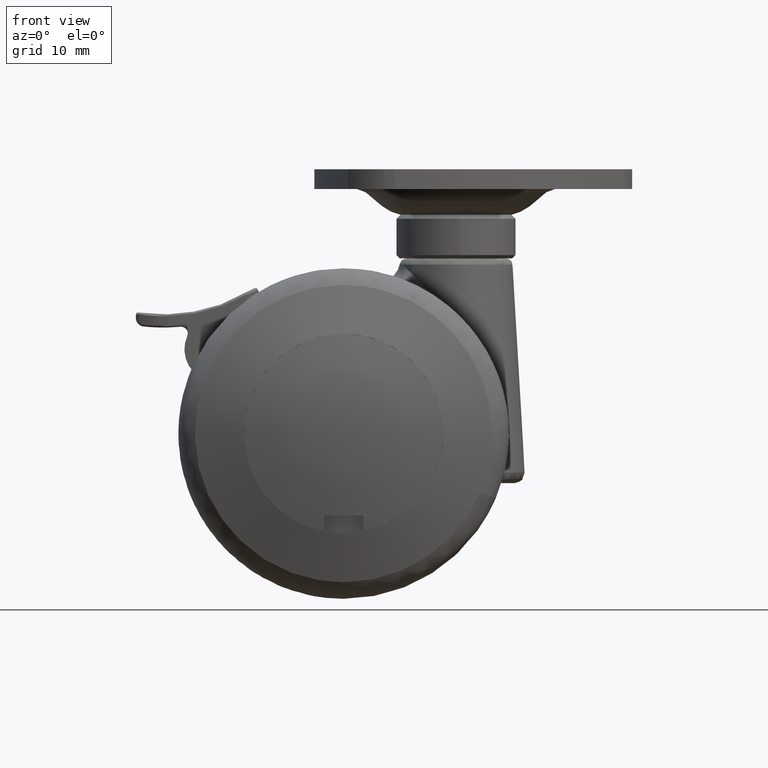
[diagram: clean part render]
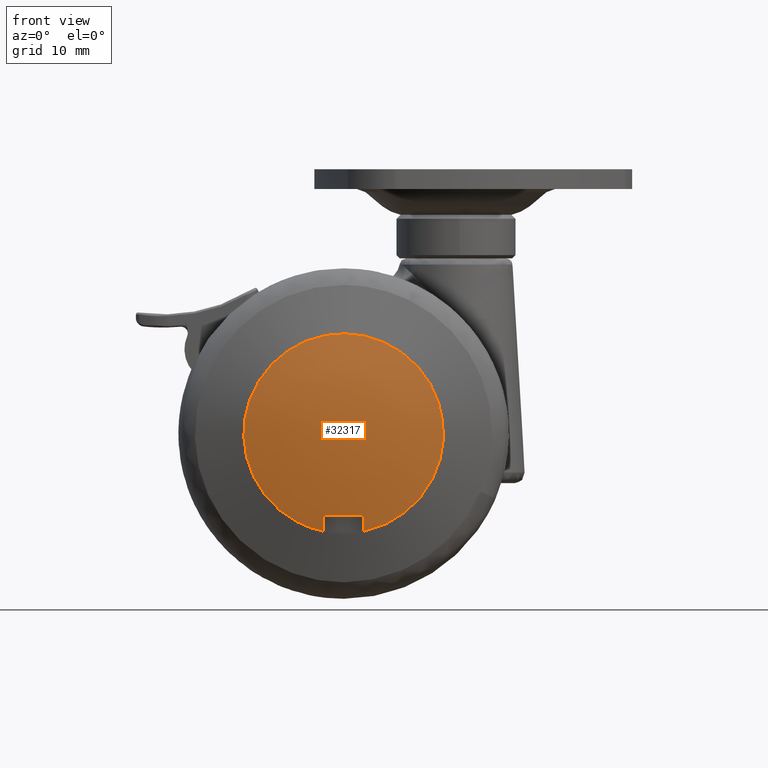
[diagram: same view with one face highlighted and labeled with its STEP entity id]
A machine part, front view. The second image highlights one B-rep face of the part: STEP entity #32317.
In plain terms, the highlighted face is a freeform B-spline surface patch.
Its self-contained STEP definition (entity closure, byte-faithful):
#22404=CARTESIAN_POINT('',(3.0,-23.059141668414401,-12.400000000000000));
#22405=VERTEX_POINT('',#22404);
#22413=CARTESIAN_POINT('',(-3.0,-23.059141668414401,-12.400000000000000));
#22414=VERTEX_POINT('',#22413);
#22415=CARTESIAN_POINT('',(3.000000000000010,-23.059141668414359,-12.400000000000000));
#22416=CARTESIAN_POINT('',(2.168404E-014,-23.212651989781424,-12.399999999999997));
#22417=CARTESIAN_POINT('',(-2.999999999999988,-23.059141668414359,-12.400000000000000));
#22425=(BOUNDED_CURVE()B_SPLINE_CURVE(2,(#22415,#22416,#22417),.UNSPECIFIED.,.F.,.U.)CURVE()GEOMETRIC_REPRESENTATION_ITEM()QUASI_UNIFORM_CURVE()RATIONAL_B_SPLINE_CURVE((1.0,0.998693375438973,1.0))REPRESENTATION_ITEM(''));
#22426=EDGE_CURVE('',#22405,#22414,#22425,.T.);
#22448=CARTESIAN_POINT('',(3.0,-22.500000459189099,-14.798986451781060));
#22449=VERTEX_POINT('',#22448);
#22457=CARTESIAN_POINT('',(3.0,-22.500000459189099,-14.798986451781060));
#22458=CARTESIAN_POINT('',(3.000000000000000,-22.804229559589110,-13.605240478503202));
#22459=CARTESIAN_POINT('',(3.0,-23.059141668414359,-12.400000000000039));
#22467=(BOUNDED_CURVE()B_SPLINE_CURVE(2,(#22457,#22458,#22459),.UNSPECIFIED.,.F.,.U.)CURVE()GEOMETRIC_REPRESENTATION_ITEM()QUASI_UNIFORM_CURVE()RATIONAL_B_SPLINE_CURVE((1.0,0.999788763024764,1.0))REPRESENTATION_ITEM(''));
#22468=EDGE_CURVE('',#22449,#22405,#22467,.T.);
#22485=CARTESIAN_POINT('',(-3.0,-22.500000459189099,-14.798986451781060));
#22486=VERTEX_POINT('',#22485);
#22487=CARTESIAN_POINT('',(-3.0,-23.059141668414380,-12.399999999999970));
#22488=CARTESIAN_POINT('',(-3.000000000000000,-22.804229559589182,-13.605240478502909));
#22489=CARTESIAN_POINT('',(-3.0,-22.500000459189099,-14.798986451781060));
#22497=(BOUNDED_CURVE()B_SPLINE_CURVE(2,(#22487,#22488,#22489),.UNSPECIFIED.,.F.,.U.)CURVE()GEOMETRIC_REPRESENTATION_ITEM()QUASI_UNIFORM_CURVE()RATIONAL_B_SPLINE_CURVE((1.0,0.999788763024764,1.0))REPRESENTATION_ITEM(''));
#22498=EDGE_CURVE('',#22414,#22486,#22497,.T.);
#32264=CARTESIAN_POINT('',(3.0,-22.500000459189099,-14.798986451781060));
#32265=CARTESIAN_POINT('',(16.388397175553621,-22.500000459194354,-12.084936293175325));
#32266=CARTESIAN_POINT('',(15.024558153601300,-22.500000459194350,1.507531853412338));
#32267=CARTESIAN_POINT('',(13.660719131648975,-22.500000459194354,15.100000000000000));
#32268=CARTESIAN_POINT('',(0.0,-22.500000459194350,15.100000000000000));
#32269=CARTESIAN_POINT('',(-13.660719131648975,-22.500000459194354,15.100000000000000));
#32270=CARTESIAN_POINT('',(-15.024558153601300,-22.500000459194350,1.507531853412335));
#32271=CARTESIAN_POINT('',(-16.388397175553621,-22.500000459194354,-12.084936293175321));
#32272=CARTESIAN_POINT('',(-3.0,-22.500000459189099,-14.798986451781060));
#32280=(BOUNDED_CURVE()B_SPLINE_CURVE(2,(#32264,#32265,#32266,#32267,#32268,#32269,#32270,#32271,#32272),.UNSPECIFIED.,.F.,.U.)B_SPLINE_CURVE_WITH_KNOTS((3,2,2,2,3),(0.0,0.250000000000000,0.500000000000000,0.750000000000000,1.0),.UNSPECIFIED.)CURVE()GEOMETRIC_REPRESENTATION_ITEM()RATIONAL_B_SPLINE_CURVE((1.0,0.741564746527098,1.0,0.741564746527098,1.0,0.741564746527098,1.0,0.741564746527098,1.0))REPRESENTATION_ITEM(''));
#32281=EDGE_CURVE('',#22449,#22486,#32280,.T.);
#32287=CARTESIAN_POINT('',(-16.198589917248967,-19.954294156284675,-15.962063784127558));
#32288=CARTESIAN_POINT('',(-8.256086904831921,-22.190363238663451,-16.244219657206948));
#32289=CARTESIAN_POINT('',(8.256087790977423,-22.190363238663451,-16.244219657206948));
#32290=CARTESIAN_POINT('',(16.198591589845218,-19.954293685395211,-15.962063724708893));
#32291=CARTESIAN_POINT('',(-16.554758065455211,-22.290366900299951,-7.474721589583210));
#32292=CARTESIAN_POINT('',(-8.441211474114228,-24.622812310007529,-7.595215988247710));
#32293=CARTESIAN_POINT('',(8.441212380129592,-24.622812310007529,-7.595215988247710));
#32294=CARTESIAN_POINT('',(16.554759773343921,-22.290366409323866,-7.474721564219328));
#32295=CARTESIAN_POINT('',(-16.554758065455211,-21.911531790126006,8.909694483297576));
#32296=CARTESIAN_POINT('',(-8.441211474114228,-24.236478995300811,9.113493423780774));
#32297=CARTESIAN_POINT('',(8.441212380129592,-24.236478995300811,9.113493423780774));
#32298=CARTESIAN_POINT('',(16.554759773343921,-21.911531300728289,8.909694440398219));
#32299=CARTESIAN_POINT('',(-16.289722505968875,-19.858592066390685,16.200152373169551));
#32300=CARTESIAN_POINT('',(-8.303439642709920,-22.105622814339721,16.542568415309677));
#32301=CARTESIAN_POINT('',(8.303440533937904,-22.105622814339721,16.542568415309677));
#32302=CARTESIAN_POINT('',(16.289724187601472,-19.858591593244380,16.200152301068673));
#32310=(BOUNDED_SURFACE()B_SPLINE_SURFACE(2,2,((#32287,#32291,#32295,#32299),(#32288,#32292,#32296,#32300),(#32289,#32293,#32297,#32301),(#32290,#32294,#32298,#32302)),.UNSPECIFIED.,.F.,.F.,.U.)B_SPLINE_SURFACE_WITH_KNOTS((3,1,3),(3,1,3),(14.451984096574780,30.760225851330759,47.068469356489182),(13.402272643756870,30.760225851330748,45.691772995281219),.UNSPECIFIED.)GEOMETRIC_REPRESENTATION_ITEM()RATIONAL_B_SPLINE_SURFACE(((1.042215590028075,1.019792791986311,1.019792791986311,1.036384931790116),(1.022422798041765,1.0,1.0,1.016592139803806),(1.022422798041765,1.0,1.0,1.016592139803806),(1.042215594276891,1.019792796235126,1.019792796235126,1.036384936038931)))REPRESENTATION_ITEM('')SURFACE());
#32311=ORIENTED_EDGE('',*,*,#22498,.F.);
#32312=ORIENTED_EDGE('',*,*,#22426,.F.);
#32313=ORIENTED_EDGE('',*,*,#22468,.F.);
#32314=ORIENTED_EDGE('',*,*,#32281,.T.);
#32315=EDGE_LOOP('',(#32311,#32312,#32313,#32314));
#32316=FACE_OUTER_BOUND('',#32315,.T.);
#32317=ADVANCED_FACE('',(#32316),#32310,.T.);